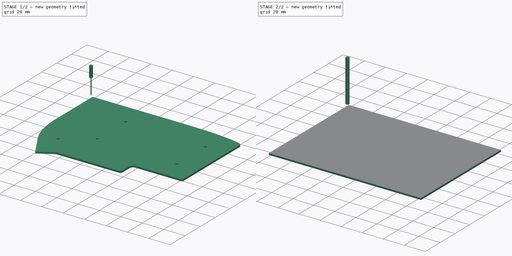
[diagram: build sequence overview — one tinted view per stage of 2, left to right]
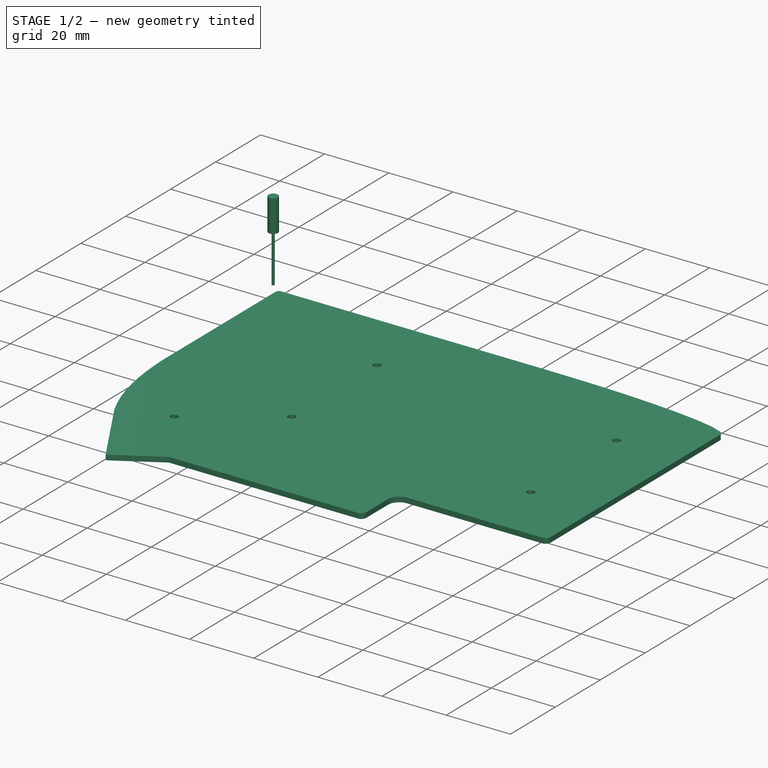
[diagram: stage 1 of 2 — iso view after this stage's code; geometry added in this stage tinted green]
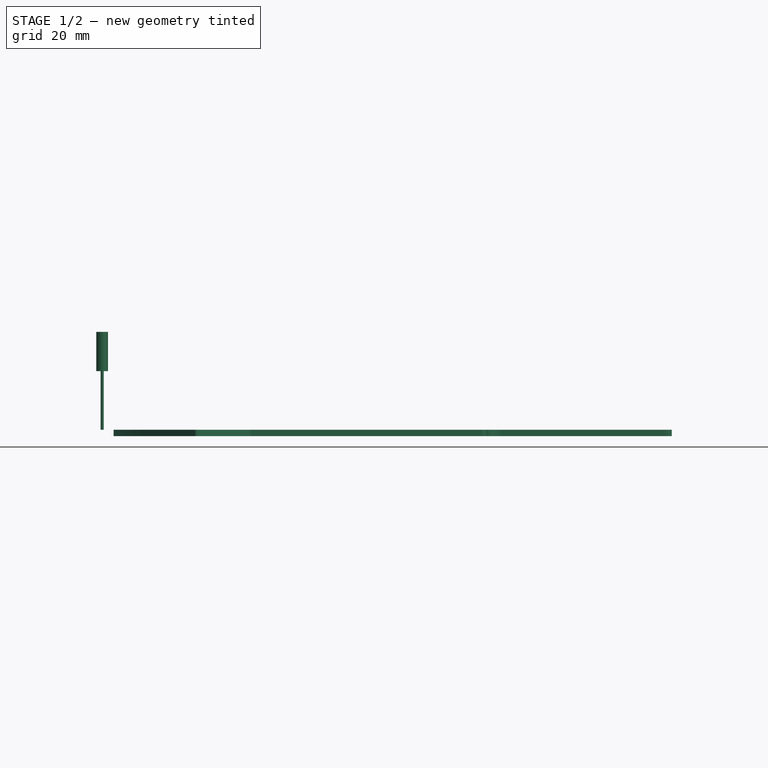
[diagram: stage 1 of 2 — front view after this stage's code; geometry added in this stage tinted green]
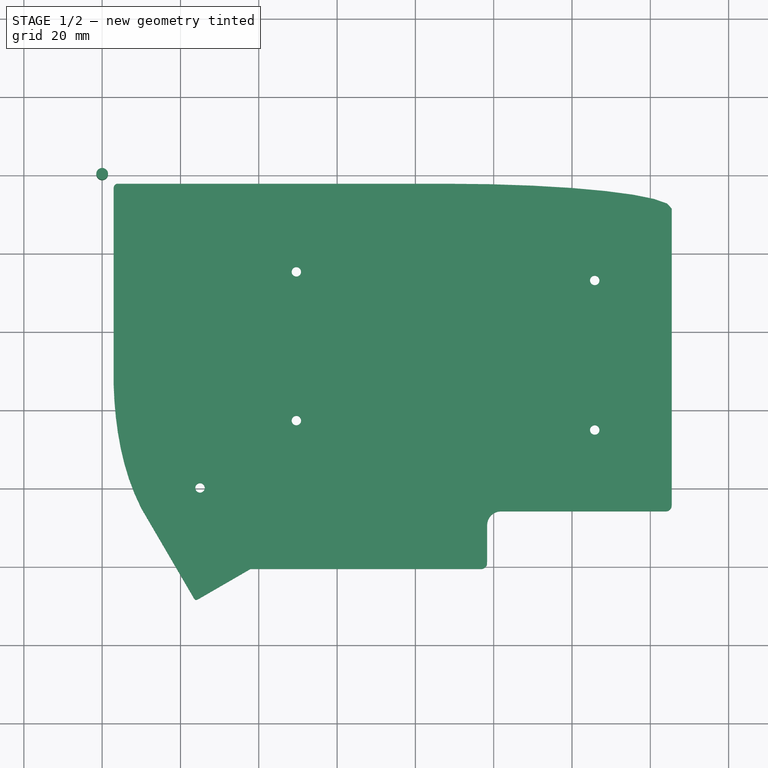
[diagram: stage 1 of 2 — top view after this stage's code; geometry added in this stage tinted green]
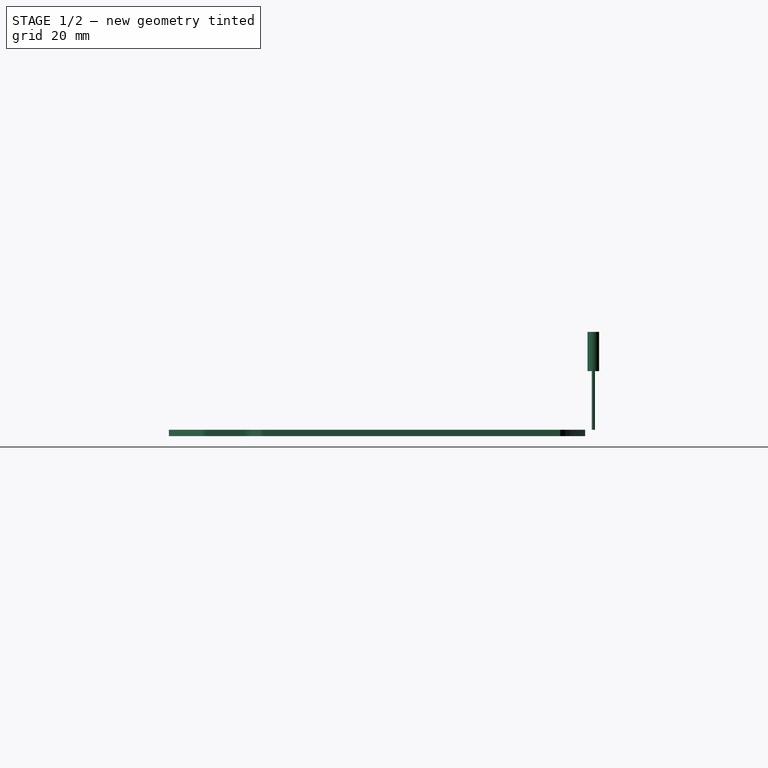
[diagram: stage 1 of 2 — right view after this stage's code; geometry added in this stage tinted green]
FCSTD DOCUMENT  (FreeCAD 0.19R0.19.1)
Label: Bottom_Plate
License: All rights reserved
LicenseURL: http://en.wikipedia.org/wiki/All_rights_reserved
objects: Path::FeaturePython×5, Part::FeaturePython×4, App::Part×3, App::DocumentObjectGroup×2, PartDesign::CoordinateSystem×1, Part::Feature×1, Sketcher::SketchObject×1, App::FeaturePython×1, Path::FeatureCompoundPython×1
note: 9 computed .brp shape members not serialized (recipe doc carries the construction recipe); baked Part::Feature solids carry a one-line shape summary decoded from their .brp

FEATURE [PartDesign::CoordinateSystem] Local_CS_145d
  AttacherType = Attacher::AttachEngine3D
FEATURE [Part::Feature] Pcb_145d
  shape: bbox 142.5 x 106.3 x 1.6 mm, 128 faces (baked)
FEATURE [Sketcher::SketchObject] PCB_Sketch_145d
  FullyConstrained = false
  sketch-geometry (120):
    g0: LineSegment StartX=116.187 StartY=-136.481 StartZ=0 EndX=117.862 EndY=-135.511 EndZ=0
    g1: LineSegment StartX=114.511 StartY=-137.451 StartZ=0 EndX=116.187 EndY=-136.481 EndZ=0
    g2: LineSegment StartX=82.9375 StartY=-50.7506 StartZ=0 EndX=82.9375 EndY=-44.4437 EndZ=0
    g3: LineSegment StartX=82.9375 StartY=-57.0576 StartZ=0 EndX=82.9375 EndY=-50.7506 EndZ=0
    g4: LineSegment StartX=115.212 StartY=-37.0868 StartZ=0 EndX=104.804 EndY=-37.0868 EndZ=0
    g5: LineSegment StartX=218.692 StartY=-120.79 StartZ=0 EndX=223.96 EndY=-120.79 EndZ=0
    g6: LineSegment StartX=213.425 StartY=-120.79 StartZ=0 EndX=218.692 EndY=-120.79 EndZ=0
    g7: LineSegment StartX=208.157 StartY=-120.79 StartZ=0 EndX=213.425 EndY=-120.79 EndZ=0
    g8: LineSegment StartX=202.89 StartY=-120.79 StartZ=0 EndX=208.157 EndY=-120.79 EndZ=0
    g9: LineSegment StartX=197.622 StartY=-120.79 StartZ=0 EndX=202.89 EndY=-120.79 EndZ=0
    g10: LineSegment StartX=192.355 StartY=-120.79 StartZ=0 EndX=197.622 EndY=-120.79 EndZ=0
    g11: LineSegment StartX=187.087 StartY=-120.79 StartZ=0 EndX=192.355 EndY=-120.79 EndZ=0
    g12: LineSegment StartX=181.819 StartY=-120.79 StartZ=0 EndX=187.087 EndY=-120.79 EndZ=0
    g13: LineSegment StartX=181.114 StartY=-120.861 StartZ=0 EndX=181.819 EndY=-120.79 EndZ=0
    g14: LineSegment StartX=180.456 StartY=-121.065 StartZ=0 EndX=181.114 EndY=-120.861 EndZ=0
    g15: LineSegment StartX=179.862 StartY=-121.387 StartZ=0 EndX=180.456 EndY=-121.065 EndZ=0
    g16: LineSegment StartX=179.344 StartY=-121.814 StartZ=0 EndX=179.862 EndY=-121.387 EndZ=0
    g17: LineSegment StartX=178.917 StartY=-122.332 StartZ=0 EndX=179.344 EndY=-121.814 EndZ=0
    g18: LineSegment StartX=178.594 StartY=-122.927 StartZ=0 EndX=178.917 EndY=-122.332 EndZ=0
    g19: LineSegment StartX=178.39 StartY=-123.584 StartZ=0 EndX=178.594 EndY=-122.927 EndZ=0
    g20: LineSegment StartX=178.319 StartY=-124.29 StartZ=0 EndX=178.39 EndY=-123.584 EndZ=0
    g21: LineSegment StartX=199.808 StartY=-38.1705 StartZ=0 EndX=189.92 EndY=-37.5854 EndZ=0
    g22: LineSegment StartX=208.421 StartY=-38.9456 StartZ=0 EndX=199.808 EndY=-38.1705 EndZ=0
    g23: LineSegment StartX=215.526 StartY=-39.8852 StartZ=0 EndX=208.421 EndY=-38.9456 EndZ=0
    g24: LineSegment StartX=220.889 StartY=-40.9638 StartZ=0 EndX=215.526 EndY=-39.8852 EndZ=0
    g25: LineSegment StartX=178.99 StartY=-37.2157 StartZ=0 EndX=167.251 EndY=-37.0868 EndZ=0
    g26: LineSegment StartX=189.92 StartY=-37.5854 StartZ=0 EndX=178.99 EndY=-37.2157 EndZ=0
    g27: LineSegment StartX=177.658 StartY=-135.256 StartZ=0 EndX=177.404 EndY=-135.394 EndZ=0
    g28: LineSegment StartX=177.88 StartY=-135.073 StartZ=0 EndX=177.658 EndY=-135.256 EndZ=0
    g29: LineSegment StartX=178.063 StartY=-134.851 StartZ=0 EndX=177.88 EndY=-135.073 EndZ=0
    g30: LineSegment StartX=178.202 StartY=-134.596 StartZ=0 EndX=178.063 EndY=-134.851 EndZ=0
    g31: LineSegment StartX=178.289 StartY=-134.314 StartZ=0 EndX=178.202 EndY=-134.596 EndZ=0
    g32: LineSegment StartX=178.319 StartY=-134.012 StartZ=0 EndX=178.289 EndY=-134.314 EndZ=0
    g33: LineSegment StartX=225.46 StartY=-52.9184 StartZ=0 EndX=225.46 EndY=-62.4 EndZ=0
    g34: LineSegment StartX=225.46 StartY=-43.4368 StartZ=0 EndX=225.46 EndY=-52.9184 EndZ=0
    g35: LineSegment StartX=82.9375 StartY=-69.6714 StartZ=0 EndX=82.9375 EndY=-63.3645 EndZ=0
    g36: LineSegment StartX=82.9375 StartY=-75.9784 StartZ=0 EndX=82.9375 EndY=-69.6714 EndZ=0
    g37: LineSegment StartX=82.9375 StartY=-82.2853 StartZ=0 EndX=82.9375 EndY=-75.9784 EndZ=0
    g38: LineSegment StartX=82.9375 StartY=-88.5922 StartZ=0 EndX=82.9375 EndY=-82.2853 EndZ=0
    g39: LineSegment StartX=104.804 StartY=-37.0868 StartZ=0 EndX=94.396 EndY=-37.0868 EndZ=0
    g40: LineSegment StartX=125.62 StartY=-37.0868 StartZ=0 EndX=115.212 EndY=-37.0868 EndZ=0
    g41: LineSegment StartX=136.027 StartY=-37.0868 StartZ=0 EndX=125.62 EndY=-37.0868 EndZ=0
    g42: LineSegment StartX=146.435 StartY=-37.0868 StartZ=0 EndX=136.027 EndY=-37.0868 EndZ=0
    g43: LineSegment StartX=156.843 StartY=-37.0868 StartZ=0 EndX=146.435 EndY=-37.0868 EndZ=0
    g44: LineSegment StartX=167.251 StartY=-37.0868 StartZ=0 EndX=156.843 EndY=-37.0868 EndZ=0
    g45: LineSegment StartX=83.4009 StartY=-37.266 StartZ=0 EndX=83.5793 EndY=-37.1692 EndZ=0
    g46: LineSegment StartX=83.2456 StartY=-37.3941 StartZ=0 EndX=83.4009 EndY=-37.266 EndZ=0
    g47: LineSegment StartX=83.1174 StartY=-37.5495 StartZ=0 EndX=83.2456 EndY=-37.3941 EndZ=0
    g48: LineSegment StartX=83.0207 StartY=-37.7279 StartZ=0 EndX=83.1174 EndY=-37.5495 EndZ=0
    g49: LineSegment StartX=82.9595 StartY=-37.925 StartZ=0 EndX=83.0207 EndY=-37.7279 EndZ=0
    g50: LineSegment StartX=82.9375 StartY=-38.1368 StartZ=0 EndX=82.9595 EndY=-37.925 EndZ=0
    g51: LineSegment StartX=83.7765 StartY=-37.1081 StartZ=0 EndX=83.9882 EndY=-37.0868 EndZ=0
    g52: LineSegment StartX=83.5793 StartY=-37.1692 StartZ=0 EndX=83.7765 EndY=-37.1081 EndZ=0
    g53: LineSegment StartX=94.396 StartY=-37.0868 StartZ=0 EndX=83.9882 EndY=-37.0868 EndZ=0
    g54: LineSegment StartX=82.9375 StartY=-63.3645 StartZ=0 EndX=82.9375 EndY=-57.0576 EndZ=0
    g55: LineSegment StartX=82.9375 StartY=-44.4437 StartZ=0 EndX=82.9375 EndY=-38.1368 EndZ=0
    g56: LineSegment StartX=88.2918 StartY=-116.318 StartZ=0 EndX=89.9929 EndY=-119.988 EndZ=0
    g57: LineSegment StartX=86.8631 StartY=-112.531 StartZ=0 EndX=88.2918 EndY=-116.318 EndZ=0
    g58: LineSegment StartX=85.688 StartY=-108.649 StartZ=0 EndX=86.8631 EndY=-112.531 EndZ=0
    g59: LineSegment StartX=84.7471 StartY=-104.695 StartZ=0 EndX=85.688 EndY=-108.649 EndZ=0
    g60: LineSegment StartX=84.021 StartY=-100.691 StartZ=0 EndX=84.7471 EndY=-104.695 EndZ=0
    g61: LineSegment StartX=83.4903 StartY=-96.6577 StartZ=0 EndX=84.021 EndY=-100.691 EndZ=0
    g62: LineSegment StartX=83.1357 StartY=-92.6176 StartZ=0 EndX=83.4903 EndY=-96.6577 EndZ=0
    g63: LineSegment StartX=82.9375 StartY=-88.5922 StartZ=0 EndX=83.1357 EndY=-92.6176 EndZ=0
    g64: LineSegment StartX=104.289 StartY=-143.357 StartZ=0 EndX=104.457 EndY=-143.272 EndZ=0
    g65: LineSegment StartX=104.13 StartY=-143.404 StartZ=0 EndX=104.289 EndY=-143.357 EndZ=0
    g66: LineSegment StartX=103.981 StartY=-143.414 StartZ=0 EndX=104.13 EndY=-143.404 EndZ=0
    g67: LineSegment StartX=103.842 StartY=-143.386 StartZ=0 EndX=103.981 EndY=-143.414 EndZ=0
    g68: LineSegment StartX=103.714 StartY=-143.323 StartZ=0 EndX=103.842 EndY=-143.386 EndZ=0
    g69: LineSegment StartX=103.597 StartY=-143.223 StartZ=0 EndX=103.714 EndY=-143.323 EndZ=0
    g70: LineSegment StartX=103.492 StartY=-143.088 StartZ=0 EndX=103.597 EndY=-143.223 EndZ=0
    g71: LineSegment StartX=103.398 StartY=-142.919 StartZ=0 EndX=103.492 EndY=-143.088 EndZ=0
    g72: LineSegment StartX=112.835 StartY=-138.421 StartZ=0 EndX=114.511 EndY=-137.451 EndZ=0
    g73: LineSegment StartX=111.16 StartY=-139.391 StartZ=0 EndX=112.835 EndY=-138.421 EndZ=0
    g74: LineSegment StartX=109.484 StartY=-140.361 StartZ=0 EndX=111.16 EndY=-139.391 EndZ=0
    g75: LineSegment StartX=107.808 StartY=-141.331 StartZ=0 EndX=109.484 EndY=-140.361 EndZ=0
    g76: LineSegment StartX=106.132 StartY=-142.302 StartZ=0 EndX=107.808 EndY=-141.331 EndZ=0
    g77: LineSegment StartX=104.457 StartY=-143.272 StartZ=0 EndX=106.132 EndY=-142.302 EndZ=0
    g78: LineSegment StartX=101.723 StartY=-140.053 StartZ=0 EndX=103.398 EndY=-142.919 EndZ=0
    g79: LineSegment StartX=100.047 StartY=-137.186 StartZ=0 EndX=101.723 EndY=-140.053 EndZ=0
    g80: LineSegment StartX=98.3713 StartY=-134.32 StartZ=0 EndX=100.047 EndY=-137.186 EndZ=0
    g81: LineSegment StartX=96.6956 StartY=-131.454 StartZ=0 EndX=98.3713 EndY=-134.32 EndZ=0
    g82: LineSegment StartX=95.02 StartY=-128.587 StartZ=0 EndX=96.6956 EndY=-131.454 EndZ=0
    g83: LineSegment StartX=93.3443 StartY=-125.721 StartZ=0 EndX=95.02 EndY=-128.587 EndZ=0
    g84: LineSegment StartX=91.6686 StartY=-122.855 StartZ=0 EndX=93.3443 EndY=-125.721 EndZ=0
    g85: LineSegment StartX=89.9929 StartY=-119.988 StartZ=0 EndX=91.6686 EndY=-122.855 EndZ=0
    g86: LineSegment StartX=169.45 StartY=-135.512 StartZ=0 EndX=176.819 EndY=-135.512 EndZ=0
    g87: LineSegment StartX=162.08 StartY=-135.512 StartZ=0 EndX=169.45 EndY=-135.512 EndZ=0
    g88: LineSegment StartX=154.711 StartY=-135.512 StartZ=0 EndX=162.08 EndY=-135.512 EndZ=0
    g89: LineSegment StartX=147.341 StartY=-135.512 StartZ=0 EndX=154.711 EndY=-135.512 EndZ=0
    g90: LineSegment StartX=139.972 StartY=-135.512 StartZ=0 EndX=147.341 EndY=-135.512 EndZ=0
    g91: LineSegment StartX=132.602 StartY=-135.512 StartZ=0 EndX=139.972 EndY=-135.512 EndZ=0
    g92: LineSegment StartX=125.233 StartY=-135.512 StartZ=0 EndX=132.602 EndY=-135.512 EndZ=0
    g93: LineSegment StartX=117.862 StartY=-135.511 StartZ=0 EndX=125.233 EndY=-135.512 EndZ=0
    g94: LineSegment StartX=178.319 StartY=-132.816 StartZ=0 EndX=178.319 EndY=-134.034 EndZ=0
    g95: LineSegment StartX=178.319 StartY=-131.598 StartZ=0 EndX=178.319 EndY=-132.816 EndZ=0
    g96: LineSegment StartX=178.319 StartY=-130.38 StartZ=0 EndX=178.319 EndY=-131.598 EndZ=0
    g97: LineSegment StartX=178.319 StartY=-129.162 StartZ=0 EndX=178.319 EndY=-130.38 EndZ=0
    g98: LineSegment StartX=178.319 StartY=-127.944 StartZ=0 EndX=178.319 EndY=-129.162 EndZ=0
    g99: LineSegment StartX=178.319 StartY=-126.726 StartZ=0 EndX=178.319 EndY=-127.944 EndZ=0
    g100: LineSegment StartX=178.319 StartY=-125.508 StartZ=0 EndX=178.319 EndY=-126.726 EndZ=0
    g101: LineSegment StartX=178.319 StartY=-124.29 StartZ=0 EndX=178.319 EndY=-125.508 EndZ=0
    g102: LineSegment StartX=177.122 StartY=-135.481 StartZ=0 EndX=176.819 EndY=-135.512 EndZ=0
    g103: LineSegment StartX=177.404 StartY=-135.394 StartZ=0 EndX=177.122 EndY=-135.481 EndZ=0
    g104: LineSegment StartX=224.278 StartY=-42.1562 StartZ=0 EndX=220.889 EndY=-40.9638 EndZ=0
    g105: LineSegment StartX=225.46 StartY=-43.4368 StartZ=0 EndX=224.278 EndY=-42.1562 EndZ=0
    g106: LineSegment StartX=224.262 StartY=-120.759 StartZ=0 EndX=223.96 EndY=-120.79 EndZ=0
    g107: LineSegment StartX=224.544 StartY=-120.672 StartZ=0 EndX=224.262 EndY=-120.759 EndZ=0
    g108: LineSegment StartX=224.799 StartY=-120.534 StartZ=0 EndX=224.544 EndY=-120.672 EndZ=0
    g109: LineSegment StartX=225.021 StartY=-120.351 StartZ=0 EndX=224.799 EndY=-120.534 EndZ=0
    g110: LineSegment StartX=225.204 StartY=-120.129 StartZ=0 EndX=225.021 EndY=-120.351 EndZ=0
    g111: LineSegment StartX=225.342 StartY=-119.874 StartZ=0 EndX=225.204 EndY=-120.129 EndZ=0
    g112: LineSegment StartX=225.43 StartY=-119.592 StartZ=0 EndX=225.342 EndY=-119.874 EndZ=0
    g113: LineSegment StartX=225.46 StartY=-119.29 StartZ=0 EndX=225.43 EndY=-119.592 EndZ=0
    g114: LineSegment StartX=225.46 StartY=-109.808 StartZ=0 EndX=225.46 EndY=-119.29 EndZ=0
    g115: LineSegment StartX=225.46 StartY=-100.326 StartZ=0 EndX=225.46 EndY=-109.808 EndZ=0
    g116: LineSegment StartX=225.46 StartY=-90.8449 StartZ=0 EndX=225.46 EndY=-100.326 EndZ=0
    g117: LineSegment StartX=225.46 StartY=-81.3632 StartZ=0 EndX=225.46 EndY=-90.8449 EndZ=0
    g118: LineSegment StartX=225.46 StartY=-71.8816 StartZ=0 EndX=225.46 EndY=-81.3632 EndZ=0
    g119: LineSegment StartX=225.46 StartY=-62.4 StartZ=0 EndX=225.46 EndY=-71.8816 EndZ=0
  constraints (119):
    c: Coincident(g38,g63)
    c: Coincident(g38,g37)
    c: Coincident(g37,g36)
    c: Coincident(g36,g35)
    c: Coincident(g35,g54)
    c: Coincident(g54,g3)
    c: Coincident(g2,g3)
    c: Coincident(g55,g2)
    c: Coincident(g55,g50)
    c: Coincident(g50,g49)
    c: Coincident(g48,g49)
    c: Coincident(g47,g48)
    c: Coincident(g63,g62)
    c: Coincident(g46,g47)
    c: Coincident(g45,g46)
    c: Coincident(g62,g61)
    c: Coincident(g45,g52)
    c: Coincident(g52,g51)
    c: Coincident(g51,g53)
    c: Coincident(g60,g61)
    c: Coincident(g59,g60)
    c: Coincident(g58,g59)
    c: Coincident(g58,g57)
    c: Coincident(g57,g56)
    c: Coincident(g85,g56)
    c: Coincident(g84,g85)
    c: Coincident(g84,g83)
    c: Coincident(g39,g53)
    c: Coincident(g82,g83)
    c: Coincident(g81,g82)
    c: Coincident(g80,g81)
    c: Coincident(g80,g79)
    c: Coincident(g79,g78)
    c: Coincident(g78,g71)
    c: Coincident(g70,g71)
    c: Coincident(g69,g70)
    c: Coincident(g68,g69)
    c: Coincident(g67,g68)
    c: Coincident(g67,g66)
    c: Coincident(g66,g65)
    c: Coincident(g64,g65)
    c: Coincident(g64,g77)
    c: Coincident(g39,g4)
    c: Coincident(g77,g76)
    c: Coincident(g76,g75)
    c: Coincident(g74,g75)
    c: Coincident(g74,g73)
    c: Coincident(g73,g72)
    c: Coincident(g72,g1)
    c: Coincident(g40,g4)
    c: Coincident(g0,g1)
    c: Coincident(g0,g93)
    c: Coincident(g92,g93)
    c: Coincident(g41,g40)
    c: Coincident(g92,g91)
    c: Coincident(g42,g41)
    c: Coincident(g91,g90)
    c: Coincident(g43,g42)
    c: Coincident(g90,g89)
    c: Coincident(g89,g88)
    c: Coincident(g44,g43)
    c: Coincident(g88,g87)
    c: Coincident(g44,g25)
    c: Coincident(g87,g86)
    c: Coincident(g102,g86)
    c: Coincident(g102,g103)
    c: Coincident(g103,g27)
    c: Coincident(g27,g28)
    c: Coincident(g28,g29)
    c: Coincident(g29,g30)
    c: Coincident(g31,g30)
    c: Coincident(g32,g31)
    c: Coincident(g94,g95)
    c: Coincident(g96,g95)
    c: Coincident(g96,g97)
    c: Coincident(g97,g98)
    c: Coincident(g99,g98)
    c: Coincident(g100,g99)
    c: Coincident(g101,g100)
    c: Coincident(g101,g20)
    c: Coincident(g19,g20)
    c: Coincident(g18,g19)
    c: Coincident(g18,g17)
    c: Coincident(g26,g25)
    c: Coincident(g17,g16)
    c: Coincident(g16,g15)
    c: Coincident(g15,g14)
    c: Coincident(g13,g14)
    c: Coincident(g12,g13)
    c: Coincident(g11,g12)
    c: Coincident(g26,g21)
    c: Coincident(g10,g11)
    c: Coincident(g10,g9)
    c: Coincident(g21,g22)
    c: Coincident(g9,g8)
    c: Coincident(g7,g8)
    c: Coincident(g23,g22)
    c: Coincident(g7,g6)
    c: Coincident(g23,g24)
    c: Coincident(g5,g6)
    c: Coincident(g104,g24)
    c: Coincident(g5,g106)
    c: Coincident(g107,g106)
    c: Coincident(g105,g104)
    c: Coincident(g108,g107)
    c: Coincident(g109,g108)
    c: Coincident(g110,g109)
    c: Coincident(g110,g111)
    c: Coincident(g111,g112)
    c: Coincident(g113,g112)
    c: Coincident(g114,g113)
    c: Coincident(g115,g114)
    c: Coincident(g116,g115)
    c: Coincident(g117,g116)
    c: Coincident(g117,g118)
    c: Coincident(g119,g118)
    c: Coincident(g33,g119)
    c: Coincident(g33,g34)
    c: Coincident(g105,g34)
FEATURE [App::Part] Board_Geoms_145d
  Group = -> [Local_CS_145d,Pcb_145d,PCB_Sketch_145d]
  Origin = -> Origin
FEATURE [App::Part] Step_Models_145d
  Origin = -> Origin002
FEATURE [App::Part] Board_145d  label="Lily58_Pro_BOTTOM"
  Group = -> [Board_Geoms_145d,Step_Models_145d]
  Origin = -> Origin001
FEATURE [App::FeaturePython] SetupSheet  # Path/CAM operation (typed FeaturePython)
  ClearanceHeightExpression = OpStockZMax+SetupSheet.ClearanceHeightOffset
  ClearanceHeightOffset = 5
  CoolantMode = 0
  CoolantModes = None | Flood | Mist
  FinalDepthExpression = OpFinalDepth
  HorizRapid = 0
  SafeHeightExpression = OpStockZMax+SetupSheet.SafeHeightOffset
  SafeHeightOffset = 3
  StartDepthExpression = OpStartDepth
  StepDownExpression = OpToolDiameter
  VertRapid = 0
FEATURE [Part::FeaturePython] Clone  label="Model-Lily58_Pro_BOTTOM"  # Draft clone (typed FeaturePython)
  AttacherType = Attacher::AttachEngine3D
  Fuse = false
  Objects = -> [Board_145d]
  PathResource = Model
  Placement = pos=(-80,35,0) rot=(0,0,1;0rad)
  Scale = (1,1,1)
FEATURE [Path::FeaturePython] TC__Carbide_3_175mm_2flute002  label="TC: Carbide_3_175mm_2flute002"  # Path/CAM operation (typed FeaturePython)
  HorizFeed = 0
  HorizRapid = 0
  SpindleDir = 0
  SpindleSpeed = 0
  Tool = -> ToolBit
  ToolNumber = 1
  VertFeed = 0
  VertRapid = 0
  expr: HorizRapid = SetupSheet.HorizRapid
  expr: VertRapid = SetupSheet.VertRapid
FEATURE [Path::FeaturePython] Profile  label="3_17mm Profile Perimeter"  # Path/CAM operation (typed FeaturePython)
  Active = true
  AreaParams:
    Tolerance = 1e-07
    FitArcs = True
    Simplify = False
    CleanDistance = 0.0
    Accuracy = 0.01
    Unit = 1.0
    MinArcPoints = 4
    MaxArcPoints = 100
    ClipperScale = 10000000.0
    Fill = 0
    Coplanar = 0
    Reorient = True
    Outline = False
    Explode = False
    OpenMode = 0
    Deflection = 0.01
    SubjectFill = 0
    ClipFill = 0
    Offset = 1.585
    ExtraPass = 0
    Stepover = 0.0
    LastStepover = 0.0
    JoinType = 0
    EndType = 0
    MiterLimit = 2.0
    RoundPrecision = 0.0
    PocketMode = 0
    ToolRadius = 1.0
    PocketExtraOffset = 0.0
    PocketStepover = 0.0
    PocketLastStepover = 0.0
    FromCenter = False
    Angle = 45.0
    AngleShift = 0.0
    Shift = 0.0
    Thicken = False
    SectionCount = -1
    Stepdown = 1.0
    SectionOffset = 0.0
    SectionTolerance = 1e-06
    SectionMode = 2
    Project = False
  AttemptInverseAngle = true
  ClearanceHeight = 5
  CoolantMode = None
  CycleTime = Cycletime Error
  Direction = 0
  EnableRotation = 0
  FinalDepth = -1.6
  HandleMultipleFeatures = 0
  InverseAngle = false
  JoinType = 0
  LimitDepthToFace = true
  MiterLimit = 0.1
  OffsetExtra = 0
  OpFinalDepth = -1.6
  OpStartDepth = 0
  OpStockZMax = 0
  OpStockZMin = -1.6
  OpToolDiameter = 3.17
  PathParams = {'orientation': 1, 'feedrate': 0.0, 'feedrate_v': 0.0, 'verbose': True, 'resume_height': 3.0, 'retraction': 5.0, 'return_end': True, 'preamble': False}
  ReverseDirection = false
  SafeHeight = 3
  Side = 0
  StartDepth = 0
  StartPoint = (0,0,0)
  StepDown = 0.5
  ToolController = -> TC__Carbide_3_175mm_2flute002
  UseComp = true
  UseStartPoint = false
  processCircles = false
  processHoles = false
  processPerimeter = true
  expr: ClearanceHeight = OpStockZMax + SetupSheet.ClearanceHeightOffset
  expr: SafeHeight = OpStockZMax + SetupSheet.SafeHeightOffset
  expr: StepDown = 0.5mm
  expr: FinalDepth = OpFinalDepth
  expr: StartDepth = OpStartDepth
FEATURE [Part::FeaturePython] ToolBit001  label="HSS_0_8mm"  # Path/CAM toolbit (typed FeaturePython)
  BitPropertyNames = Chipload | CuttingEdgeHeight | Diameter | Flutes | Length | Material | ShankDiameter
  BitShape = <path>
  Chipload = 0
  CuttingEdgeHeight = 15
  Diameter = 0.8
  File = <userpath>/.FreeCAD/Tools/Bit/HSS_0_8mm.fctb
  Flutes = 0
  Length = 25
  Material = 0
  ShankDiameter = 3
  ShapeName = endmill
FEATURE [Path::FeaturePython] TC__HSS_0_8mm  label="TC: HSS_0_8mm"  # Path/CAM operation (typed FeaturePython)
  HorizFeed = 0
  HorizRapid = 0
  SpindleDir = 0
  SpindleSpeed = 0
  Tool = -> ToolBit001
  ToolNumber = 2
  VertFeed = 0
  VertRapid = 0
  expr: HorizRapid = SetupSheet.HorizRapid
  expr: VertRapid = SetupSheet.VertRapid
FEATURE [App::DocumentObjectGroup] Tools
  Group = -> [TC__Carbide_3_175mm_2flute002,TC__HSS_0_8mm]
FEATURE [Path::FeaturePython] Profile001  label="0_8mm Profile Holes"  # Path/CAM operation (typed FeaturePython)
  Active = true
  AreaParams:
    Tolerance = 1e-07
    FitArcs = True
    Simplify = False
    CleanDistance = 0.0
    Accuracy = 0.01
    Unit = 1.0
    MinArcPoints = 4
    MaxArcPoints = 100
    ClipperScale = 10000000.0
    Fill = 0
    Coplanar = 0
    Reorient = True
    Outline = False
    Explode = False
    OpenMode = 0
    Deflection = 0.01
    SubjectFill = 0
    ClipFill = 0
    Offset = -0.4
    ExtraPass = 0
    Stepover = 0.0
    LastStepover = 0.0
    JoinType = 0
    EndType = 0
    MiterLimit = 2.0
    RoundPrecision = 0.0
    PocketMode = 0
    ToolRadius = 1.0
    PocketExtraOffset = 0.0
    PocketStepover = 0.0
    PocketLastStepover = 0.0
    FromCenter = False
    Angle = 45.0
    AngleShift = 0.0
    Shift = 0.0
    Thicken = False
    SectionCount = -1
    Stepdown = 1.0
    SectionOffset = 0.0
    SectionTolerance = 1e-06
    SectionMode = 2
    Project = False
  AttemptInverseAngle = true
  Base = -> [Clone]
  ClearanceHeight = 5
  CoolantMode = None
  CycleTime = Cycletime Error
  Direction = 0
  EnableRotation = 0
  FinalDepth = -2.4
  HandleMultipleFeatures = 0
  InverseAngle = false
  JoinType = 0
  LimitDepthToFace = true
  MiterLimit = 0.1
  OffsetExtra = 0
  OpFinalDepth = 0
  OpStartDepth = 0.2
  OpStockZMax = 0
  OpStockZMin = -1.6
  OpToolDiameter = 0.8
  PathParams = {'orientation': 0, 'feedrate': 0.0, 'feedrate_v': 0.0, 'verbose': True, 'resume_height': 3.0, 'retraction': 5.0, 'return_end': True, 'preamble': False, 'start': Vector (125.0109725587875, -65.11288706897284, 5.0)}
  ReverseDirection = false
  SafeHeight = 3
  Side = 0
  StartDepth = 0.2
  StartPoint = (0,0,0)
  StepDown = 0.2
  ToolController = -> TC__HSS_0_8mm
  UseComp = true
  UseStartPoint = false
  processCircles = true
  processHoles = true
  processPerimeter = false
  expr: ClearanceHeight = OpStockZMax + SetupSheet.ClearanceHeightOffset
  expr: SafeHeight = OpStockZMax + SetupSheet.SafeHeightOffset
  expr: StepDown = 0.2
  expr: FinalDepth = -2.4
  expr: StartDepth = OpStartDepth
FEATURE [Path::FeatureCompoundPython] Operations  # Path/CAM operation (typed FeaturePython)
  Group = -> [Profile001,Profile]
  UsePlacements = false
FEATURE [Path::FeaturePython] Job  # Path/CAM operation (typed FeaturePython)
  CycleTime = 00:00:00
  Fixtures = G54
  GeometryTolerance = 0.01
  LastPostProcessDate = 2021-05-28 23:45:24.109925
  LastPostProcessOutput = /usr<userpath>/Src/External/Lily58/Pro/Case/gcode/bottom_plate_perimeter.nc
  Model = -> Model
  Operations = -> Operations
  OrderOutputBy = 1
  PostProcessor = 5
  SetupSheet = -> SetupSheet
  SplitOutput = true
  Stock = -> Stock001
  Tools = -> Tools
note: 2 file-system paths scrubbed to <path> (originals preserved in the JSON sidecar)
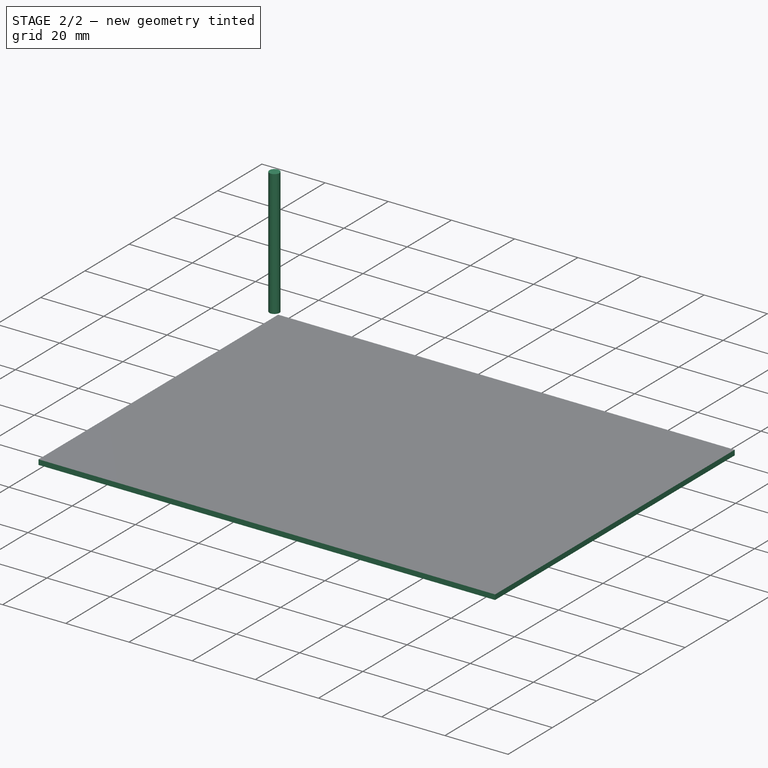
[diagram: stage 2 of 2 — iso view after this stage's code; geometry added in this stage tinted green]
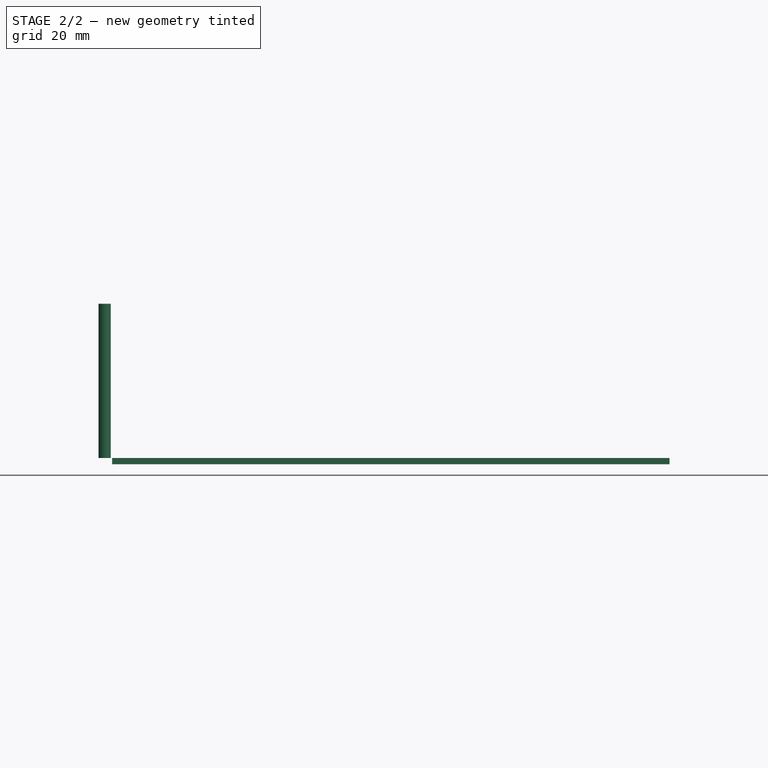
[diagram: stage 2 of 2 — front view after this stage's code; geometry added in this stage tinted green]
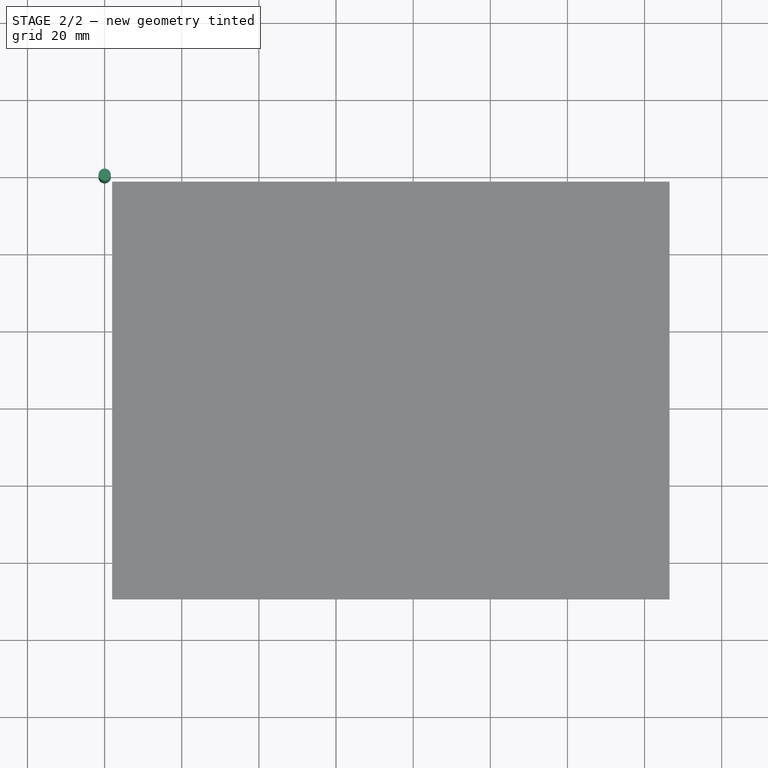
[diagram: stage 2 of 2 — top view after this stage's code; geometry added in this stage tinted green]
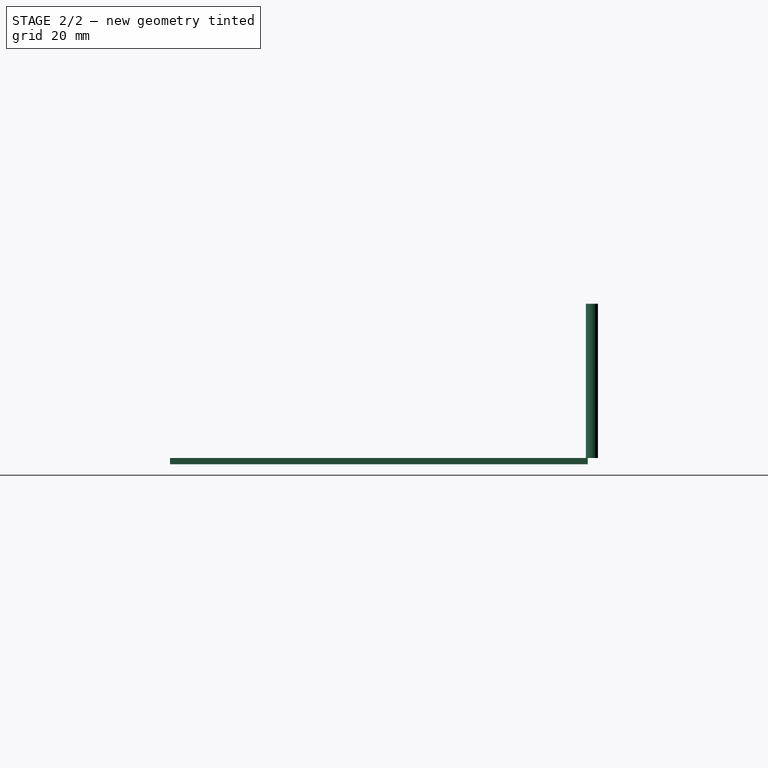
[diagram: stage 2 of 2 — right view after this stage's code; geometry added in this stage tinted green]
FEATURE [App::DocumentObjectGroup] Model
  Group = -> [Clone]
FEATURE [Part::FeaturePython] Stock001  # WARN: FeaturePython — macro-defined, semantics opaque (R4)
  Base = -> Model
  ExtXneg = 1
  ExtXpos = 1
  ExtYneg = 1
  ExtYpos = 1
  ExtZneg = 0
  ExtZpos = 0
  Placement = pos=(2.93753,-108.414,-1.6) rot=(0,0,1;0rad)
  StockType = FromBase
FEATURE [Part::FeaturePython] ToolBit  label="Carbide_3_175mm_2flute002"  # Path/CAM toolbit (typed FeaturePython)
  BitPropertyNames = Chipload | CuttingEdgeHeight | Diameter | Flutes | Length | Material | ShankDiameter
  BitShape = <path>
  Chipload = 0
  CuttingEdgeHeight = 20
  Diameter = 3.17
  File = <userpath>/.FreeCAD/Tools/Bit/Carbide_3_175mm_2flute.fctb
  Flutes = 2
  Length = 40
  Material = 1
  ShankDiameter = 3.17
  ShapeName = endmill
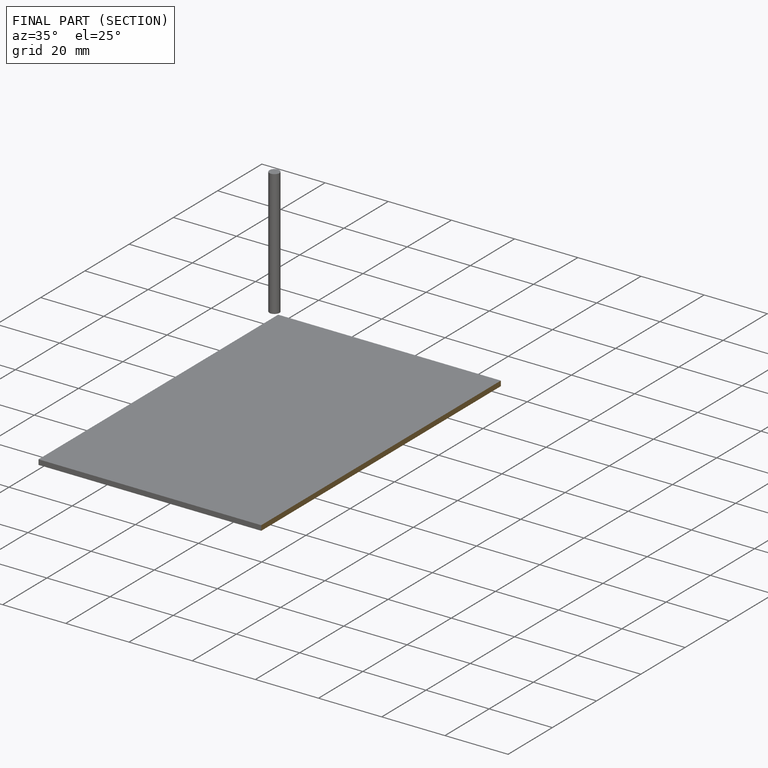
[diagram: finished part — half-section view (interior)]
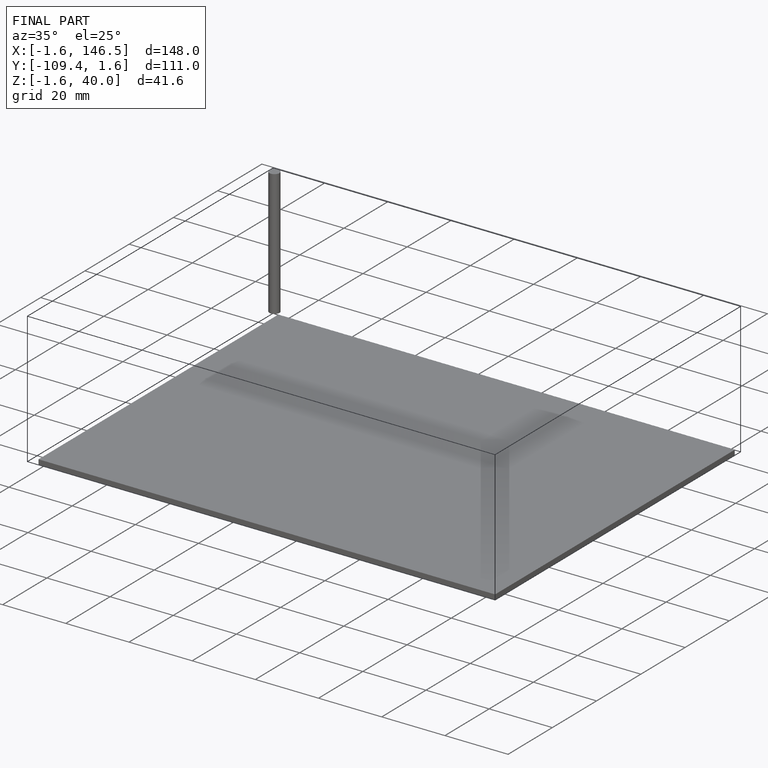
[diagram: finished part — iso view with bounding-box wireframe]
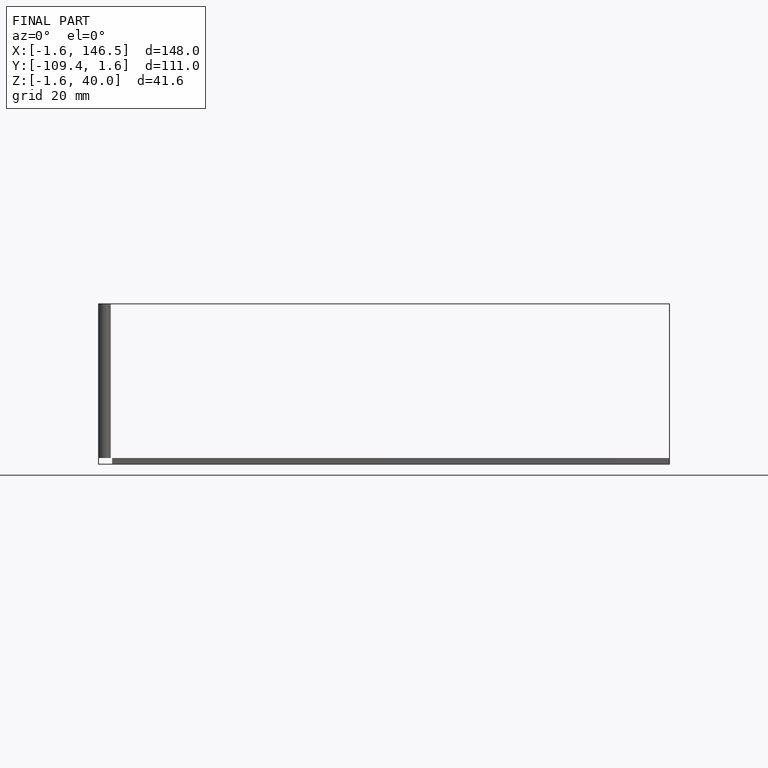
[diagram: finished part — front view with bounding-box wireframe]
